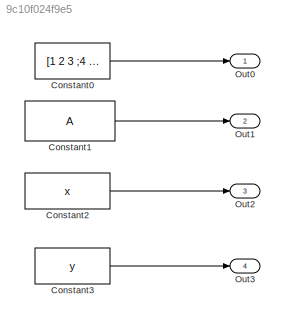
MODEL slx_9c10f024f9e5
KIND model
CONFIG AbsTol = auto
CONFIG EnableMultiTasking = on
CONFIG FixedStep = 0.200000
CONFIG MaxStep = auto
CONFIG MinStep = auto
CONFIG RelTol = 1e-3
CONFIG SampleTimeConstraint = Unconstrained
CONFIG Solver = FixedStepDiscrete
CONFIG SolverName = FixedStepDiscrete
CONFIG StartTime = 0.0
CONFIG StopTime = 10.0
WORKSPACE source: MAT-file member
WORKSPACE A = [0.616044676147 0.473288848903 0.351659507063 0.830828627896 0.585264091153 0.549723608291 0.91719366383 0.28583901882 0.757200229111 0.753729094278 0.380445846975 0.567821640725 ... (48 elements, 2x3x4x2)]
BLOCK [Constant] Constant0
  Value = [1 2 3 ;4  5 6]
BLOCK [Constant] Constant1
  Value = A
BLOCK [Constant] Constant2
  Value = x
BLOCK [Constant] Constant3
  Value = y
BLOCK [Outport] Out0
  IconDisplay = Port number
BLOCK [Outport] Out1
  IconDisplay = Port number
  Port = 2
BLOCK [Outport] Out2
  IconDisplay = Port number
  Port = 3
BLOCK [Outport] Out3
  IconDisplay = Port number
  Port = 4
LINE Constant0:1 -> Out0:1
LINE Constant1:1 -> Out1:1
LINE Constant2:1 -> Out2:1
LINE Constant3:1 -> Out3:1
